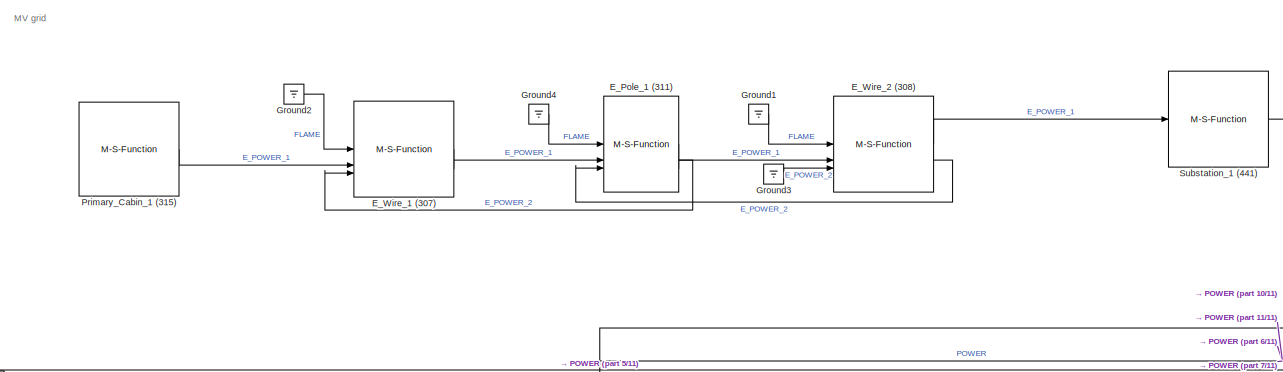
[diagram: root canvas - part 1/11, top center region]
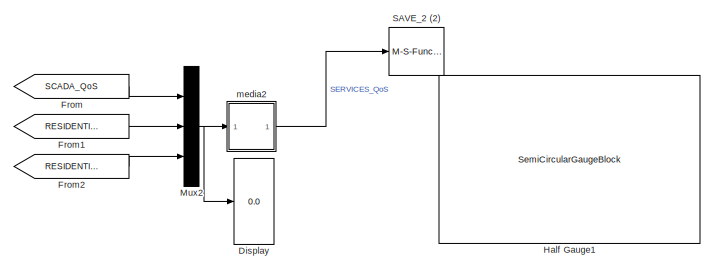
[diagram: root canvas - part 2/11, top right region]
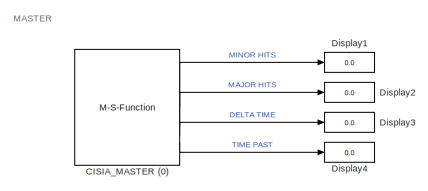
[diagram: root canvas - part 3/11, top left region]
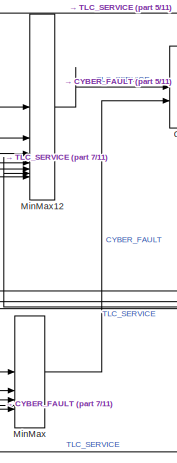
[diagram: root canvas - part 4/11, top left region]
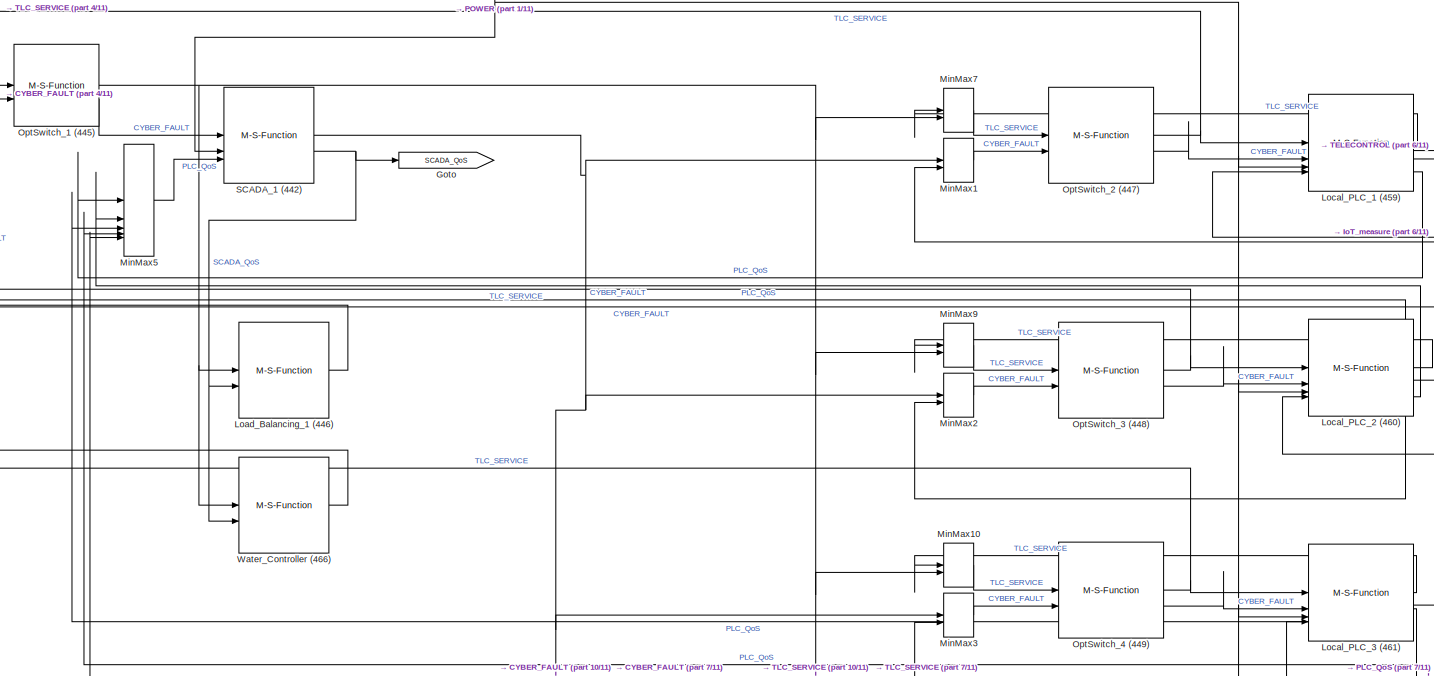
[diagram: root canvas - part 5/11, central region]
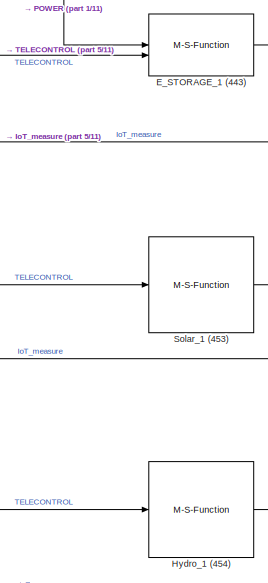
[diagram: root canvas - part 6/11, middle right region]
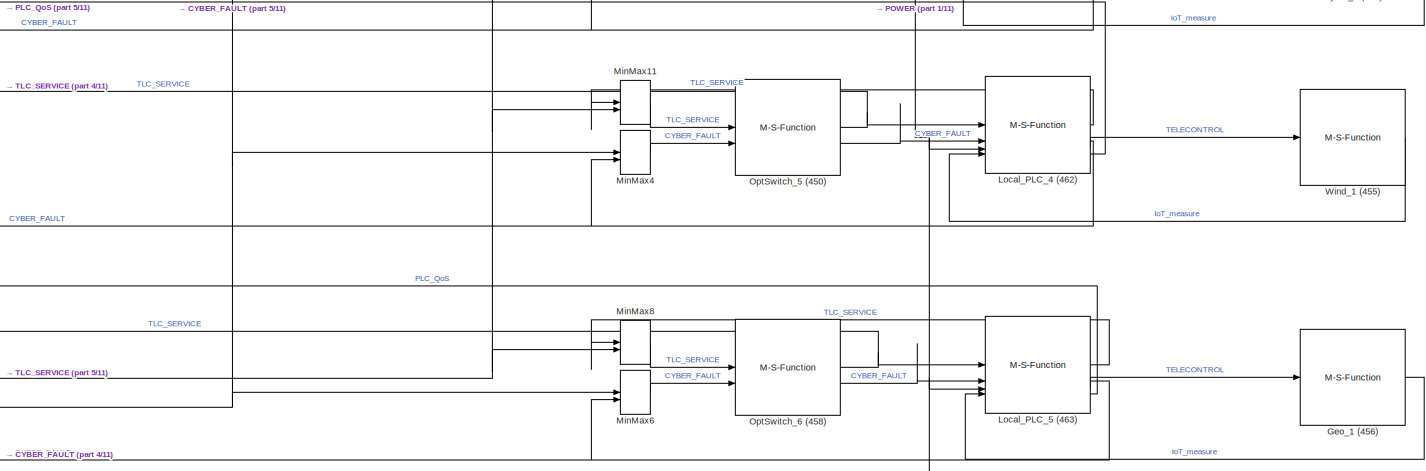
[diagram: root canvas - part 7/11, central region]
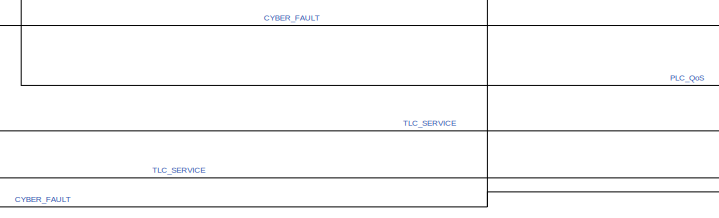
[diagram: root canvas - part 8/11, central region]
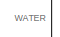
[diagram: root canvas - part 9/11, bottom left region]
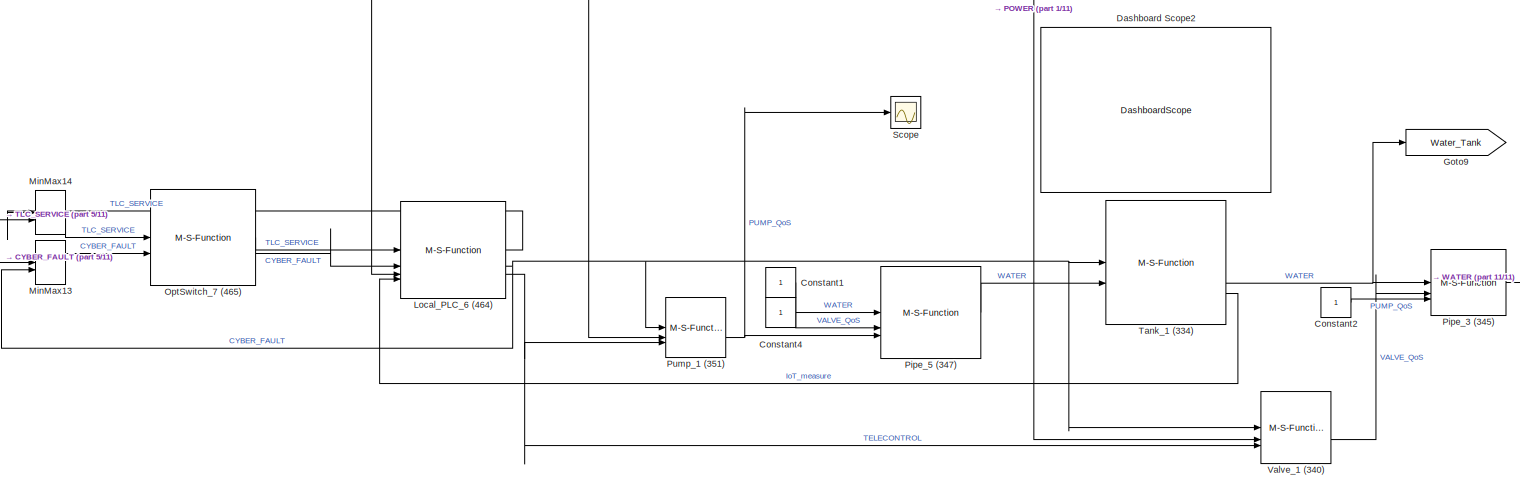
[diagram: root canvas - part 10/11, bottom center region]
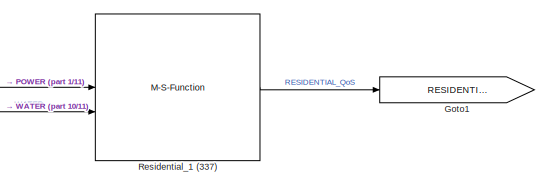
[diagram: root canvas - part 11/11, bottom right region]
MODEL slx_db7042e55161
KIND model
CONFIG AbsTol = auto
CONFIG EnableMultiTasking = off
CONFIG FixedStep = auto
CONFIG MaxStep = auto
CONFIG MinStep = auto
CONFIG RelTol = 1e-3
CONFIG SampleTimeConstraint = Unconstrained
CONFIG SolverName = VariableStepAuto
CONFIG StartTime = 0.0
CONFIG StopTime = 5
BLOCK [M-S-Function] CISIA_MASTER (0)
  FunctionName = cisia_msfun
  Parameters = Parameter1, Parameter2, Parameter3, resources, Parameter4, Parameter5, Parameter6, Parameter7, Parameter8, Parameter9,Parameter11,Parameter12
BLOCK [Constant] Constant1
BLOCK [Constant] Constant2
BLOCK [Constant] Constant4
BLOCK [DashboardScope] Dashboard Scope2
  Ymax = 1
  Ymin = 0
BLOCK [Display] Display
  Decimation = 1
BLOCK [Display] Display1
  Decimation = 1
BLOCK [Display] Display2
  Decimation = 1
BLOCK [Display] Display3
  Decimation = 1
BLOCK [Display] Display4
  Decimation = 1
BLOCK [M-S-Function] E_Pole_1 (311)
  FunctionName = cisia_msfun
  Parameters = Parameter1, Parameter2, Parameter3, resources, Parameter10, codeupdate, step_received, step_computed, dynamic_computed, step_sended, id_entity, id_project, id_type, name_type, color
BLOCK [M-S-Function] E_STORAGE_1 (443)
  FunctionName = cisia_msfun
  Parameters = Parameter1, Parameter2, Parameter3, resources, Parameter10, codeupdate, step_received, step_computed, dynamic_computed, step_sended, id_entity, id_project, id_type, name_type, color
BLOCK [M-S-Function] E_Wire_1 (307)
  FunctionName = cisia_msfun
  Parameters = Parameter1, Parameter2, Parameter3, resources, Parameter10, codeupdate, step_received, step_computed, dynamic_computed, step_sended, id_entity, id_project, id_type, name_type, color
BLOCK [M-S-Function] E_Wire_2 (308)
  FunctionName = cisia_msfun
  Parameters = Parameter1, Parameter2, Parameter3, resources, Parameter10, codeupdate, step_received, step_computed, dynamic_computed, step_sended, id_entity, id_project, id_type, name_type, color
BLOCK [From] From
  GotoTag = SCADA_QoS
BLOCK [From] From1
  GotoTag = RESIDENTIAL_1_QoS
BLOCK [From] From2
  GotoTag = RESIDENTIAL_1_QoS
BLOCK [M-S-Function] Geo_1 (456)
  FunctionName = cisia_msfun
  Parameters = Parameter1, Parameter2, Parameter3, resources, Parameter10, codeupdate, step_received, step_computed, dynamic_computed, step_sended, id_entity, id_project, id_type, name_type, color
BLOCK [Goto] Goto
  GotoTag = SCADA_QoS
BLOCK [Goto] Goto1
  GotoTag = RESIDENTIAL_1_QoS
BLOCK [Goto] Goto9
  GotoTag = Water_Tank
BLOCK [Ground] Ground1
BLOCK [Ground] Ground2
BLOCK [Ground] Ground3
BLOCK [Ground] Ground4
BLOCK [SemiCircularGaugeBlock] Half Gauge1
  ScaleMax = 1
BLOCK [M-S-Function] Hydro_1 (454)
  FunctionName = cisia_msfun
  Parameters = Parameter1, Parameter2, Parameter3, resources, Parameter10, codeupdate, step_received, step_computed, dynamic_computed, step_sended, id_entity, id_project, id_type, name_type, color
BLOCK [M-S-Function] Load_Balancing_1 (446)
  FunctionName = cisia_msfun
  Parameters = Parameter1, Parameter2, Parameter3, resources, Parameter10, codeupdate, step_received, step_computed, dynamic_computed, step_sended, id_entity, id_project, id_type, name_type, color
BLOCK [M-S-Function] Local_PLC_1 (459)
  FunctionName = cisia_msfun
  Parameters = Parameter1, Parameter2, Parameter3, resources, Parameter10, codeupdate, step_received, step_computed, dynamic_computed, step_sended, id_entity, id_project, id_type, name_type, color
BLOCK [M-S-Function] Local_PLC_2 (460)
  FunctionName = cisia_msfun
  Parameters = Parameter1, Parameter2, Parameter3, resources, Parameter10, codeupdate, step_received, step_computed, dynamic_computed, step_sended, id_entity, id_project, id_type, name_type, color
BLOCK [M-S-Function] Local_PLC_3 (461)
  FunctionName = cisia_msfun
  Parameters = Parameter1, Parameter2, Parameter3, resources, Parameter10, codeupdate, step_received, step_computed, dynamic_computed, step_sended, id_entity, id_project, id_type, name_type, color
BLOCK [M-S-Function] Local_PLC_4 (462)
  FunctionName = cisia_msfun
  Parameters = Parameter1, Parameter2, Parameter3, resources, Parameter10, codeupdate, step_received, step_computed, dynamic_computed, step_sended, id_entity, id_project, id_type, name_type, color
BLOCK [M-S-Function] Local_PLC_5 (463)
  FunctionName = cisia_msfun
  Parameters = Parameter1, Parameter2, Parameter3, resources, Parameter10, codeupdate, step_received, step_computed, dynamic_computed, step_sended, id_entity, id_project, id_type, name_type, color
BLOCK [M-S-Function] Local_PLC_6 (464)
  FunctionName = cisia_msfun
  Parameters = Parameter1, Parameter2, Parameter3, resources, Parameter10, codeupdate, step_received, step_computed, dynamic_computed, step_sended, id_entity, id_project, id_type, name_type, color
BLOCK [MinMax] MinMax
  Function = max
  Inputs = 5
BLOCK [MinMax] MinMax1
  Function = max
  Inputs = 2
BLOCK [MinMax] MinMax10
  Function = max
  Inputs = 2
BLOCK [MinMax] MinMax11
  Function = max
  Inputs = 2
BLOCK [MinMax] MinMax12
  Function = max
  Inputs = 7
BLOCK [MinMax] MinMax13
  Function = max
  Inputs = 2
BLOCK [MinMax] MinMax14
  Function = max
  Inputs = 2
BLOCK [MinMax] MinMax2
  Function = max
  Inputs = 2
BLOCK [MinMax] MinMax3
  Function = max
  Inputs = 2
BLOCK [MinMax] MinMax4
  Function = max
  Inputs = 2
BLOCK [MinMax] MinMax5
  Inputs = 5
BLOCK [MinMax] MinMax6
  Function = max
  Inputs = 2
BLOCK [MinMax] MinMax7
  Function = max
  Inputs = 2
BLOCK [MinMax] MinMax8
  Function = max
  Inputs = 2
BLOCK [MinMax] MinMax9
  Function = max
  Inputs = 2
BLOCK [Mux] Mux2
  DisplayOption = bar
  Inputs = 3
BLOCK [M-S-Function] OptSwitch_1 (445)
  FunctionName = cisia_msfun
  Parameters = Parameter1, Parameter2, Parameter3, resources, Parameter10, codeupdate, step_received, step_computed, dynamic_computed, step_sended, id_entity, id_project, id_type, name_type, color
BLOCK [M-S-Function] OptSwitch_2 (447)
  FunctionName = cisia_msfun
  Parameters = Parameter1, Parameter2, Parameter3, resources, Parameter10, codeupdate, step_received, step_computed, dynamic_computed, step_sended, id_entity, id_project, id_type, name_type, color
BLOCK [M-S-Function] OptSwitch_3 (448)
  FunctionName = cisia_msfun
  Parameters = Parameter1, Parameter2, Parameter3, resources, Parameter10, codeupdate, step_received, step_computed, dynamic_computed, step_sended, id_entity, id_project, id_type, name_type, color
BLOCK [M-S-Function] OptSwitch_4 (449)
  FunctionName = cisia_msfun
  Parameters = Parameter1, Parameter2, Parameter3, resources, Parameter10, codeupdate, step_received, step_computed, dynamic_computed, step_sended, id_entity, id_project, id_type, name_type, color
BLOCK [M-S-Function] OptSwitch_5 (450)
  FunctionName = cisia_msfun
  Parameters = Parameter1, Parameter2, Parameter3, resources, Parameter10, codeupdate, step_received, step_computed, dynamic_computed, step_sended, id_entity, id_project, id_type, name_type, color
BLOCK [M-S-Function] OptSwitch_6 (458)
  FunctionName = cisia_msfun
  Parameters = Parameter1, Parameter2, Parameter3, resources, Parameter10, codeupdate, step_received, step_computed, dynamic_computed, step_sended, id_entity, id_project, id_type, name_type, color
BLOCK [M-S-Function] OptSwitch_7 (465)
  FunctionName = cisia_msfun
  Parameters = Parameter1, Parameter2, Parameter3, resources, Parameter10, codeupdate, step_received, step_computed, dynamic_computed, step_sended, id_entity, id_project, id_type, name_type, color
BLOCK [M-S-Function] Pipe_3 (345)
  FunctionName = cisia_msfun
  Parameters = Parameter1, Parameter2, Parameter3, resources, Parameter10, codeupdate, step_received, step_computed, dynamic_computed, step_sended, id_entity, id_project, id_type, name_type, color
BLOCK [M-S-Function] Pipe_5 (347)
  FunctionName = cisia_msfun
  Parameters = Parameter1, Parameter2, Parameter3, resources, Parameter10, codeupdate, step_received, step_computed, dynamic_computed, step_sended, id_entity, id_project, id_type, name_type, color
BLOCK [M-S-Function] Primary_Cabin_1 (315)
  FunctionName = cisia_msfun
  Parameters = Parameter1, Parameter2, Parameter3, resources, Parameter10, codeupdate, step_received, step_computed, dynamic_computed, step_sended, id_entity, id_project, id_type, name_type, color
BLOCK [M-S-Function] Pump_1 (351)
  FunctionName = cisia_msfun
  Parameters = Parameter1, Parameter2, Parameter3, resources, Parameter10, codeupdate, step_received, step_computed, dynamic_computed, step_sended, id_entity, id_project, id_type, name_type, color
BLOCK [M-S-Function] Residential_1 (337)
  FunctionName = cisia_msfun
  Parameters = Parameter1, Parameter2, Parameter3, resources, Parameter10, codeupdate, step_received, step_computed, dynamic_computed, step_sended, id_entity, id_project, id_type, name_type, color
BLOCK [M-S-Function] SAVE_2 (2)
  FunctionName = cisia_msfun
  Parameters = Parameter1, Parameter2, Parameter3, Parameter4,Parameter5,Parameter6,Parameter7
BLOCK [M-S-Function] SCADA_1 (442)
  FunctionName = cisia_msfun
  Parameters = Parameter1, Parameter2, Parameter3, resources, Parameter10, codeupdate, step_received, step_computed, dynamic_computed, step_sended, id_entity, id_project, id_type, name_type, color
BLOCK [Scope] Scope
  Floating = off
  NumInputPorts = 1
  ScopeSpecificationString = Simulink.scopes.TimeScopeBlockCfg('CurrentConfiguration', extmgr.ConfigurationSet(extmgr.Configuration('Core','General UI',true),extmgr.Configuration('Core','Source UI',true),extmgr.Configuration('Sources','WiredSimulink',true),extmgr.Configuration('Visuals','Time Domain',true,'SerializedDisplays',{struct('MinYLimReal','-0.125','MaxYLimReal','1.125','YLabelReal','','MinYLimMag','0.00000','MaxYLimM...<+1347ch>
BLOCK [M-S-Function] Solar_1 (453)
  FunctionName = cisia_msfun
  Parameters = Parameter1, Parameter2, Parameter3, resources, Parameter10, codeupdate, step_received, step_computed, dynamic_computed, step_sended, id_entity, id_project, id_type, name_type, color
BLOCK [M-S-Function] Substation_1 (441)
  FunctionName = cisia_msfun
  Parameters = Parameter1, Parameter2, Parameter3, resources, Parameter10, codeupdate, step_received, step_computed, dynamic_computed, step_sended, id_entity, id_project, id_type, name_type, color
BLOCK [M-S-Function] Tank_1 (334)
  FunctionName = cisia_msfun
  Parameters = Parameter1, Parameter2, Parameter3, resources, Parameter10, codeupdate, step_received, step_computed, dynamic_computed, step_sended, id_entity, id_project, id_type, name_type, color
BLOCK [M-S-Function] Valve_1 (340)
  FunctionName = cisia_msfun
  Parameters = Parameter1, Parameter2, Parameter3, resources, Parameter10, codeupdate, step_received, step_computed, dynamic_computed, step_sended, id_entity, id_project, id_type, name_type, color
BLOCK [M-S-Function] Water_Controller (466)
  FunctionName = cisia_msfun
  Parameters = Parameter1, Parameter2, Parameter3, resources, Parameter10, codeupdate, step_received, step_computed, dynamic_computed, step_sended, id_entity, id_project, id_type, name_type, color
BLOCK [M-S-Function] Wind_1 (455)
  FunctionName = cisia_msfun
  Parameters = Parameter1, Parameter2, Parameter3, resources, Parameter10, codeupdate, step_received, step_computed, dynamic_computed, step_sended, id_entity, id_project, id_type, name_type, color
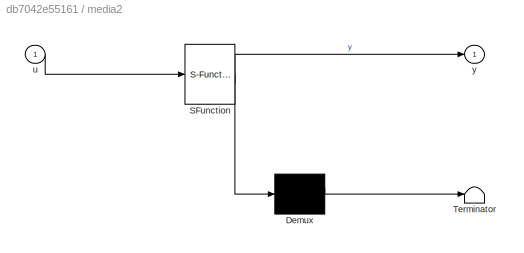
BLOCK [SubSystem] media2
  ErrorFcn = Stateflow.Translate.translate
  LibrarySourceBlock = simulink/User-Defined\nFunctions/MATLAB Function
  PermitHierarchicalResolution = ExplicitOnly
  SFBlockType = MATLAB Function
  TreatAsAtomicUnit = on
BLOCK [Demux] media2/ Demux 
  Outputs = 1
BLOCK [S-Function] media2/ SFunction 
  EnableBusSupport = on
  FunctionName = sf_sfun
  PortCounts = [1 2]
  SFcnIsStateOwnerBlock = off
  SFunctionDeploymentMode = off
  Tag = Stateflow S-Function 3
BLOCK [Terminator] media2/ Terminator 
BLOCK [Inport] media2/u
BLOCK [Outport] media2/y
ANNOTATION (root): MASTER
ANNOTATION (root): MV grid
ANNOTATION (root): WATER
LINE CISIA_MASTER (0):1 -> Display1:1
LINE CISIA_MASTER (0):2 -> Display2:1
LINE CISIA_MASTER (0):3 -> Display3:1
LINE CISIA_MASTER (0):4 -> Display4:1
LINE Constant1:1 -> Pipe_5 (347):1
LINE Constant2:1 -> Pipe_3 (345):3
LINE Constant4:1 -> Pipe_5 (347):2
LINE E_Pole_1 (311):1 -> E_Wire_2 (308):2
LINE E_Pole_1 (311):2 -> E_Wire_1 (307):3
LINE E_STORAGE_1 (443):1 -> Local_PLC_1 (459):4
LINE E_Wire_1 (307):1 -> E_Pole_1 (311):2
LINE E_Wire_2 (308):1 -> Substation_1 (441):1
LINE E_Wire_2 (308):2 -> E_Pole_1 (311):3
LINE From1:1 -> Mux2:2
LINE From2:1 -> Mux2:3
LINE From:1 -> Mux2:1
LINE Geo_1 (456):1 -> Local_PLC_5 (463):4
LINE Ground1:1 -> E_Wire_2 (308):1
LINE Ground2:1 -> E_Wire_1 (307):1
LINE Ground3:1 -> E_Wire_2 (308):3
LINE Ground4:1 -> E_Pole_1 (311):1
LINE Hydro_1 (454):1 -> Local_PLC_3 (461):4
LINE Load_Balancing_1 (446):1 -> MinMax12:6
LINE Local_PLC_1 (459):1 -> MinMax7:1
NET Local_PLC_1 (459):2 -> MinMax1:2, MinMax:1
LINE Local_PLC_1 (459):3 -> E_STORAGE_1 (443):2
LINE Local_PLC_1 (459):4 -> MinMax5:1
LINE Local_PLC_2 (460):1 -> MinMax9:1
NET Local_PLC_2 (460):2 -> MinMax2:2, MinMax:2
LINE Local_PLC_2 (460):3 -> Solar_1 (453):1
LINE Local_PLC_2 (460):4 -> MinMax5:2
LINE Local_PLC_3 (461):1 -> MinMax10:1
NET Local_PLC_3 (461):2 -> MinMax3:2, MinMax:3
LINE Local_PLC_3 (461):3 -> Hydro_1 (454):1
LINE Local_PLC_3 (461):4 -> MinMax5:3
LINE Local_PLC_4 (462):1 -> MinMax11:1
NET Local_PLC_4 (462):2 -> MinMax4:2, MinMax:4
LINE Local_PLC_4 (462):3 -> Wind_1 (455):1
LINE Local_PLC_4 (462):4 -> MinMax5:4
LINE Local_PLC_5 (463):1 -> MinMax8:1
NET Local_PLC_5 (463):2 -> MinMax6:2, MinMax:5
LINE Local_PLC_5 (463):3 -> Geo_1 (456):1
LINE Local_PLC_5 (463):4 -> MinMax5:5
LINE Local_PLC_6 (464):1 -> MinMax14:1
NET Local_PLC_6 (464):2 -> MinMax13:2, Pump_1 (351):1, Tank_1 (334):1, Valve_1 (340):1
NET Local_PLC_6 (464):3 -> Pump_1 (351):3, Valve_1 (340):3
LINE MinMax10:1 -> OptSwitch_4 (449):1
LINE MinMax11:1 -> OptSwitch_5 (450):1
LINE MinMax12:1 -> OptSwitch_1 (445):1
LINE MinMax13:1 -> OptSwitch_7 (465):2
LINE MinMax14:1 -> OptSwitch_7 (465):1
LINE MinMax1:1 -> OptSwitch_2 (447):2
LINE MinMax2:1 -> OptSwitch_3 (448):2
LINE MinMax3:1 -> OptSwitch_4 (449):2
LINE MinMax4:1 -> OptSwitch_5 (450):2
LINE MinMax5:1 -> SCADA_1 (442):3
LINE MinMax6:1 -> OptSwitch_6 (458):2
LINE MinMax7:1 -> OptSwitch_2 (447):1
LINE MinMax8:1 -> OptSwitch_6 (458):1
LINE MinMax9:1 -> OptSwitch_3 (448):1
LINE MinMax:1 -> OptSwitch_1 (445):2
NET Mux2:1 -> Display:1, media2:1
NET OptSwitch_1 (445):1 -> Load_Balancing_1 (446):1, MinMax10:2, MinMax11:2, MinMax14:2, MinMax7:2, MinMax8:2, MinMax9:2, Water_Controller (466):1
LINE OptSwitch_1 (445):2 -> SCADA_1 (442):1
NET OptSwitch_2 (447):1 -> Local_PLC_1 (459):1, MinMax12:1
LINE OptSwitch_2 (447):2 -> Local_PLC_1 (459):2
NET OptSwitch_3 (448):1 -> Local_PLC_2 (460):1, MinMax12:2
LINE OptSwitch_3 (448):2 -> Local_PLC_2 (460):2
NET OptSwitch_4 (449):1 -> Local_PLC_3 (461):1, MinMax12:3
LINE OptSwitch_4 (449):2 -> Local_PLC_3 (461):2
NET OptSwitch_5 (450):1 -> Local_PLC_4 (462):1, MinMax12:4
LINE OptSwitch_5 (450):2 -> Local_PLC_4 (462):2
NET OptSwitch_6 (458):1 -> Local_PLC_5 (463):1, MinMax12:5
LINE OptSwitch_6 (458):2 -> Local_PLC_5 (463):2
LINE OptSwitch_7 (465):1 -> Local_PLC_6 (464):1
LINE OptSwitch_7 (465):2 -> Local_PLC_6 (464):2
LINE Pipe_3 (345):1 -> Residential_1 (337):2
LINE Pipe_5 (347):1 -> Tank_1 (334):2
LINE Primary_Cabin_1 (315):1 -> E_Wire_1 (307):2
NET Pump_1 (351):2 -> Pipe_5 (347):3, Scope:1
LINE Residential_1 (337):1 -> Goto1:1
NET SCADA_1 (442):1 -> MinMax13:1, MinMax1:1, MinMax2:1, MinMax3:1, MinMax4:1, MinMax6:1
NET SCADA_1 (442):2 -> Goto:1, Load_Balancing_1 (446):2, Water_Controller (466):2
LINE Solar_1 (453):1 -> Local_PLC_2 (460):4
NET Substation_1 (441):1 -> E_STORAGE_1 (443):1, Local_PLC_1 (459):3, Local_PLC_2 (460):3, Local_PLC_3 (461):3, Local_PLC_4 (462):3, Local_PLC_5 (463):3, Local_PLC_6 (464):3, Pump_1 (351):2, Residential_1 (337):1, SCADA_1 (442):2, Valve_1 (340):2
NET Tank_1 (334):2 -> Goto9:1, Pipe_3 (345):1
LINE Tank_1 (334):3 -> Local_PLC_6 (464):4
LINE Valve_1 (340):2 -> Pipe_3 (345):2
LINE Water_Controller (466):1 -> MinMax12:7
LINE Wind_1 (455):1 -> Local_PLC_4 (462):4
LINE media2:1 -> SAVE_2 (2):1
note: NET lines group one-source signal fan-out (src -> all destinations, sorted); 1:1 wires keep LINE
CHART media2 states=1 transitions=1
  STATE_LABEL 'eML_blk_kernel()'
  STATE_LABEL 'SCRIPT:\nfunction y = media(u)\n\ny = mean(u);\n'
CHART  states=0 transitions=0
